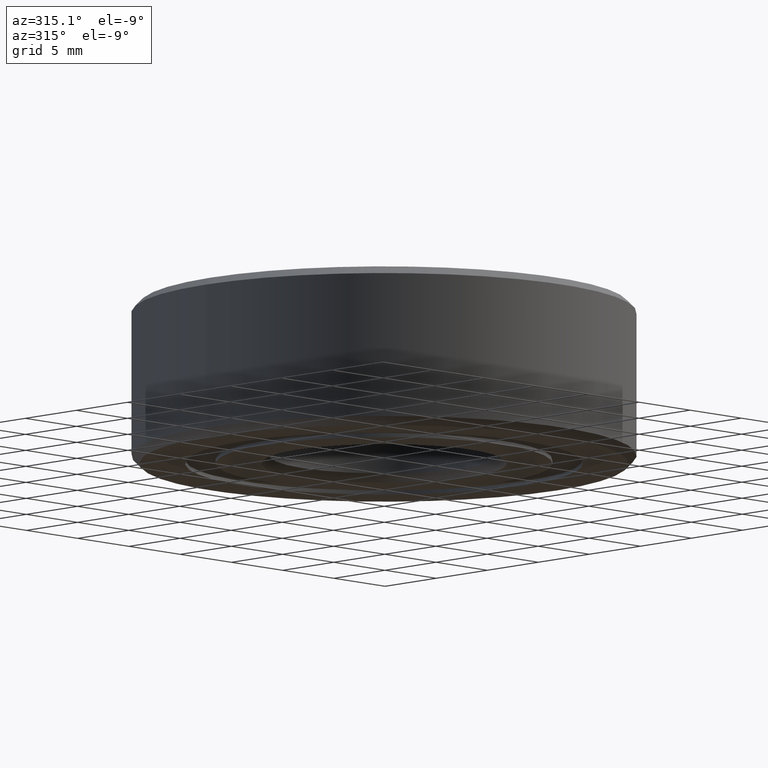
[diagram: clean part render]
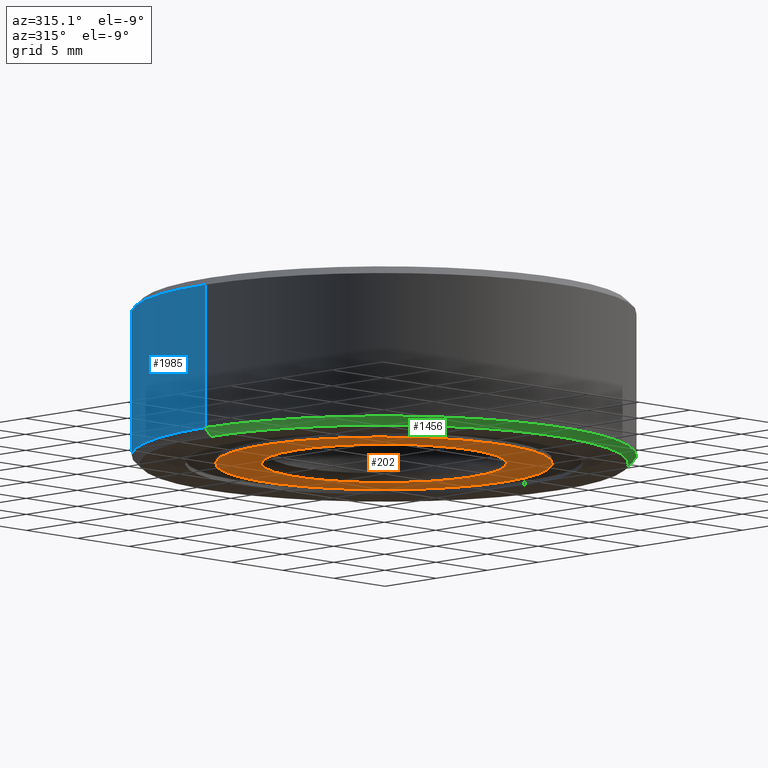
[diagram: same view with three faces highlighted in distinct colors, each labeled with its STEP entity id]
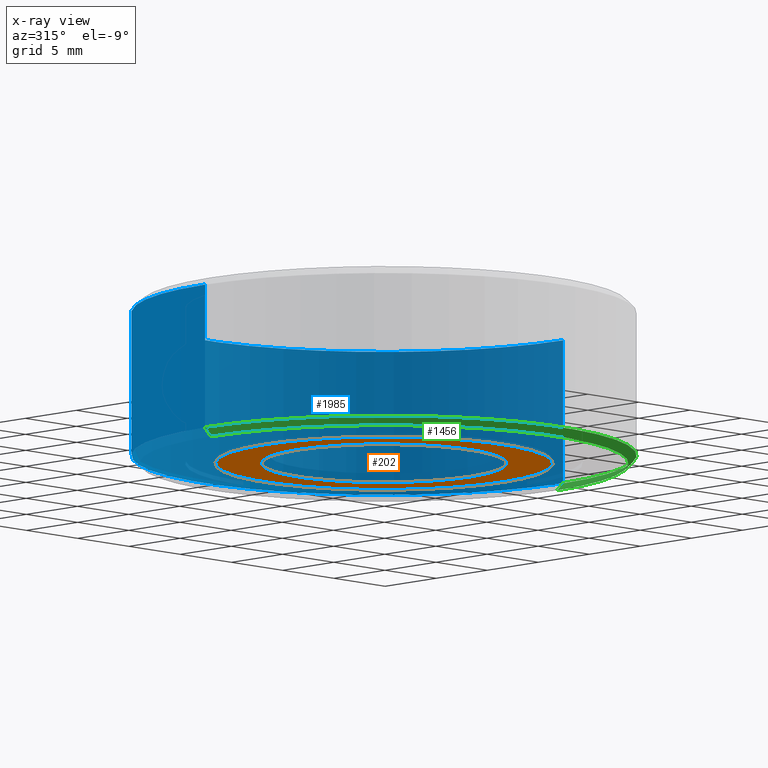
[diagram: x-ray of the same camera — body ghosted, the three highlighted faces saturated]
A machine part, auxiliary view with three faces highlighted in distinct colors.
The next image is the same camera in x-ray (body ghosted, the three faces saturated) — at least one of them is partly hidden behind the body in this view.
Their STEP definitions:

[orange] entity #202 — the highlighted planar face has unit normal (0, -0, 1).
#81 = CARTESIAN_POINT ( 'NONE',  ( 0.0000000000000000000, 0.0000000000000000000, -0.2187500000000001388 ) ) ;
#132 = ORIENTED_EDGE ( 'NONE', *, *, #2314, .F. ) ;
#137 = CARTESIAN_POINT ( 'NONE',  ( -0.4587912087912089376, 5.618571853230990234E-17, -0.2187500000000001388 ) ) ;
#138 = VERTEX_POINT ( 'NONE', #908 ) ;
#163 = DIRECTION ( 'NONE',  ( 1.000000000000000000, 0.0000000000000000000, 0.0000000000000000000 ) ) ;
#202 = ADVANCED_FACE ( 'NONE', ( #1486, #2229 ), #1377, .F. ) ;
#355 = CIRCLE ( 'NONE', #1291, 0.4587912087912089376 ) ;
#482 = CIRCLE ( 'NONE', #2151, 0.3343749999999999223 ) ;
#512 = DIRECTION ( 'NONE',  ( 1.000000000000000000, 0.0000000000000000000, 0.0000000000000000000 ) ) ;
#566 = AXIS2_PLACEMENT_3D ( 'NONE', #2295, #597, #975 ) ;
#597 = DIRECTION ( 'NONE',  ( 0.0000000000000000000, -0.0000000000000000000, 1.000000000000000000 ) ) ;
#700 = ORIENTED_EDGE ( 'NONE', *, *, #1541, .F. ) ;
#742 = DIRECTION ( 'NONE',  ( 1.000000000000000000, 0.0000000000000000000, 0.0000000000000000000 ) ) ;
#908 = CARTESIAN_POINT ( 'NONE',  ( -0.3343749999999999223, 0.0000000000000000000, -0.2187500000000001943 ) ) ;
#918 = ORIENTED_EDGE ( 'NONE', *, *, #948, .T. ) ;
#946 = CARTESIAN_POINT ( 'NONE',  ( 0.0000000000000000000, 0.0000000000000000000, -0.2187500000000001943 ) ) ;
#948 = EDGE_CURVE ( 'NONE', #138, #1066, #482, .T. ) ;
#975 = DIRECTION ( 'NONE',  ( 1.000000000000000000, 0.0000000000000000000, 0.0000000000000000000 ) ) ;
#1011 = DIRECTION ( 'NONE',  ( -0.0000000000000000000, -0.0000000000000000000, 1.000000000000000000 ) ) ;
#1066 = VERTEX_POINT ( 'NONE', #1373 ) ;
#1176 = AXIS2_PLACEMENT_3D ( 'NONE', #1598, #1812, #512 ) ;
#1232 = AXIS2_PLACEMENT_3D ( 'NONE', #81, #1011, #1584 ) ;
#1291 = AXIS2_PLACEMENT_3D ( 'NONE', #2047, #2407, #742 ) ;
#1373 = CARTESIAN_POINT ( 'NONE',  ( 0.3343749999999999223, 4.094912734648961077E-17, -0.2187500000000001943 ) ) ;
#1377 = PLANE ( 'NONE',  #566 ) ;
#1486 = FACE_OUTER_BOUND ( 'NONE', #1831, .T. ) ;
#1541 = EDGE_CURVE ( 'NONE', #1706, #2035, #1678, .T. ) ;
#1572 = CARTESIAN_POINT ( 'NONE',  ( 0.4587912087912089376, 0.0000000000000000000, -0.2187500000000001388 ) ) ;
#1584 = DIRECTION ( 'NONE',  ( 1.000000000000000000, 0.0000000000000000000, 0.0000000000000000000 ) ) ;
#1598 = CARTESIAN_POINT ( 'NONE',  ( 0.0000000000000000000, 0.0000000000000000000, -0.2187500000000001943 ) ) ;
#1617 = DIRECTION ( 'NONE',  ( -0.0000000000000000000, -0.0000000000000000000, 1.000000000000000000 ) ) ;
#1678 = CIRCLE ( 'NONE', #1232, 0.4587912087912089376 ) ;
#1706 = VERTEX_POINT ( 'NONE', #137 ) ;
#1802 = CIRCLE ( 'NONE', #1176, 0.3343749999999999223 ) ;
#1812 = DIRECTION ( 'NONE',  ( -0.0000000000000000000, -0.0000000000000000000, 1.000000000000000000 ) ) ;
#1831 = EDGE_LOOP ( 'NONE', ( #132, #700 ) ) ;
#2035 = VERTEX_POINT ( 'NONE', #1572 ) ;
#2039 = EDGE_CURVE ( 'NONE', #1066, #138, #1802, .T. ) ;
#2047 = CARTESIAN_POINT ( 'NONE',  ( 0.0000000000000000000, 0.0000000000000000000, -0.2187500000000001388 ) ) ;
#2081 = ORIENTED_EDGE ( 'NONE', *, *, #2039, .T. ) ;
#2151 = AXIS2_PLACEMENT_3D ( 'NONE', #946, #1617, #163 ) ;
#2229 = FACE_BOUND ( 'NONE', #2332, .T. ) ;
#2295 = CARTESIAN_POINT ( 'NONE',  ( 0.0000000000000000000, 0.3343749999999999223, -0.2187500000000001665 ) ) ;
#2314 = EDGE_CURVE ( 'NONE', #2035, #1706, #355, .T. ) ;
#2332 = EDGE_LOOP ( 'NONE', ( #918, #2081 ) ) ;
#2407 = DIRECTION ( 'NONE',  ( -0.0000000000000000000, -0.0000000000000000000, 1.000000000000000000 ) ) ;

[blue] entity #1985 — the highlighted cylindrical surface (partial cylindrical patch) has radius 17.4625 mm, axis along (-0, -0, 1).
#55 = DIRECTION ( 'NONE',  ( 1.000000000000000000, 0.0000000000000000000, 0.0000000000000000000 ) ) ;
#82 = FACE_OUTER_BOUND ( 'NONE', #1790, .T. ) ;
#88 = AXIS2_PLACEMENT_3D ( 'NONE', #243, #1723, #55 ) ;
#122 = CARTESIAN_POINT ( 'NONE',  ( 0.0000000000000000000, 0.0000000000000000000, 0.1968750000000000777 ) ) ;
#184 = DIRECTION ( 'NONE',  ( -0.0000000000000000000, -0.0000000000000000000, 1.000000000000000000 ) ) ;
#243 = CARTESIAN_POINT ( 'NONE',  ( 0.0000000000000000000, 0.0000000000000000000, 0.2187500000000000000 ) ) ;
#337 = VERTEX_POINT ( 'NONE', #1918 ) ;
#373 = AXIS2_PLACEMENT_3D ( 'NONE', #2335, #1576, #2148 ) ;
#390 = EDGE_CURVE ( 'NONE', #1702, #337, #1418, .T. ) ;
#536 = ORIENTED_EDGE ( 'NONE', *, *, #821, .F. ) ;
#607 = VERTEX_POINT ( 'NONE', #936 ) ;
#608 = CARTESIAN_POINT ( 'NONE',  ( 0.6875000000000000000, 8.419446744138052529E-17, 0.1968750000000000777 ) ) ;
#686 = DIRECTION ( 'NONE',  ( 1.000000000000000000, 0.0000000000000000000, 0.0000000000000000000 ) ) ;
#821 = EDGE_CURVE ( 'NONE', #1702, #1079, #1624, .T. ) ;
#826 = LINE ( 'NONE', #1560, #2067 ) ;
#841 = CARTESIAN_POINT ( 'NONE',  ( 0.6875000000000000000, 0.0000000000000000000, -0.1968750000000001610 ) ) ;
#865 = DIRECTION ( 'NONE',  ( -0.0000000000000000000, -0.0000000000000000000, 1.000000000000000000 ) ) ;
#880 = ORIENTED_EDGE ( 'NONE', *, *, #1194, .F. ) ;
#936 = CARTESIAN_POINT ( 'NONE',  ( -0.6875000000000000000, 0.0000000000000000000, 0.1968750000000000777 ) ) ;
#1004 = CIRCLE ( 'NONE', #1348, 0.6875000000000000000 ) ;
#1079 = VERTEX_POINT ( 'NONE', #608 ) ;
#1170 = CYLINDRICAL_SURFACE ( 'NONE', #88, 0.6875000000000000000 ) ;
#1194 = EDGE_CURVE ( 'NONE', #1079, #607, #1004, .T. ) ;
#1335 = ORIENTED_EDGE ( 'NONE', *, *, #390, .T. ) ;
#1348 = AXIS2_PLACEMENT_3D ( 'NONE', #122, #865, #686 ) ;
#1410 = ORIENTED_EDGE ( 'NONE', *, *, #1555, .T. ) ;
#1418 = CIRCLE ( 'NONE', #373, 0.6875000000000000000 ) ;
#1440 = CARTESIAN_POINT ( 'NONE',  ( 0.6875000000000000000, 0.0000000000000000000, 0.2187500000000000000 ) ) ;
#1555 = EDGE_CURVE ( 'NONE', #337, #607, #826, .T. ) ;
#1560 = CARTESIAN_POINT ( 'NONE',  ( -0.6875000000000000000, 8.419446744138052529E-17, 0.2187500000000000000 ) ) ;
#1576 = DIRECTION ( 'NONE',  ( -0.0000000000000000000, -0.0000000000000000000, 1.000000000000000000 ) ) ;
#1624 = LINE ( 'NONE', #1440, #2063 ) ;
#1702 = VERTEX_POINT ( 'NONE', #841 ) ;
#1723 = DIRECTION ( 'NONE',  ( -0.0000000000000000000, -0.0000000000000000000, 1.000000000000000000 ) ) ;
#1790 = EDGE_LOOP ( 'NONE', ( #1335, #1410, #880, #536 ) ) ;
#1918 = CARTESIAN_POINT ( 'NONE',  ( -0.6875000000000000000, 8.419446744138052529E-17, -0.1968750000000001610 ) ) ;
#1985 = ADVANCED_FACE ( 'NONE', ( #82 ), #1170, .T. ) ;
#2063 = VECTOR ( 'NONE', #184, 39.37007874015748143 ) ;
#2067 = VECTOR ( 'NONE', #2303, 39.37007874015748143 ) ;
#2148 = DIRECTION ( 'NONE',  ( 1.000000000000000000, 0.0000000000000000000, 0.0000000000000000000 ) ) ;
#2303 = DIRECTION ( 'NONE',  ( -0.0000000000000000000, -0.0000000000000000000, 1.000000000000000000 ) ) ;
#2335 = CARTESIAN_POINT ( 'NONE',  ( 0.0000000000000000000, 0.0000000000000000000, -0.1968750000000001610 ) ) ;

[green] entity #1456 — the highlighted conical surface has half-angle 45 deg.
#52 = ORIENTED_EDGE ( 'NONE', *, *, #2392, .F. ) ;
#92 = VERTEX_POINT ( 'NONE', #1724 ) ;
#257 = DIRECTION ( 'NONE',  ( -0.0000000000000000000, -0.0000000000000000000, 1.000000000000000000 ) ) ;
#337 = VERTEX_POINT ( 'NONE', #1918 ) ;
#396 = CARTESIAN_POINT ( 'NONE',  ( 0.6656250000000001332, 0.0000000000000000000, -0.2187500000000001388 ) ) ;
#418 = AXIS2_PLACEMENT_3D ( 'NONE', #1354, #257, #2096 ) ;
#431 = EDGE_CURVE ( 'NONE', #92, #337, #652, .T. ) ;
#461 = AXIS2_PLACEMENT_3D ( 'NONE', #2266, #1345, #2243 ) ;
#466 = DIRECTION ( 'NONE',  ( -0.7071067811865463515, 8.659560562354918067E-17, 0.7071067811865486830 ) ) ;
#506 = EDGE_LOOP ( 'NONE', ( #1654, #1007, #2192, #52 ) ) ;
#576 = DIRECTION ( 'NONE',  ( -0.0000000000000000000, -0.0000000000000000000, 1.000000000000000000 ) ) ;
#652 = LINE ( 'NONE', #1389, #1611 ) ;
#709 = CARTESIAN_POINT ( 'NONE',  ( 0.6656250000000001332, 0.0000000000000000000, -0.2187500000000001388 ) ) ;
#804 = CIRCLE ( 'NONE', #418, 0.6875000000000000000 ) ;
#841 = CARTESIAN_POINT ( 'NONE',  ( 0.6875000000000000000, 0.0000000000000000000, -0.1968750000000001610 ) ) ;
#850 = CONICAL_SURFACE ( 'NONE', #2208, 0.6656250000000001332, 0.7853981633974466137 ) ;
#1007 = ORIENTED_EDGE ( 'NONE', *, *, #1103, .T. ) ;
#1103 = EDGE_CURVE ( 'NONE', #92, #2248, #2359, .T. ) ;
#1110 = EDGE_CURVE ( 'NONE', #2248, #1702, #2090, .T. ) ;
#1169 = CARTESIAN_POINT ( 'NONE',  ( 0.0000000000000000000, 0.0000000000000000000, -0.2187500000000001388 ) ) ;
#1345 = DIRECTION ( 'NONE',  ( -0.0000000000000000000, -0.0000000000000000000, 1.000000000000000000 ) ) ;
#1354 = CARTESIAN_POINT ( 'NONE',  ( 0.0000000000000000000, 0.0000000000000000000, -0.1968750000000001610 ) ) ;
#1389 = CARTESIAN_POINT ( 'NONE',  ( -0.6656250000000001332, 8.151555256824570378E-17, -0.2187500000000001388 ) ) ;
#1456 = ADVANCED_FACE ( 'NONE', ( #1499 ), #850, .T. ) ;
#1499 = FACE_OUTER_BOUND ( 'NONE', #506, .T. ) ;
#1611 = VECTOR ( 'NONE', #466, 39.37007874015748143 ) ;
#1654 = ORIENTED_EDGE ( 'NONE', *, *, #431, .F. ) ;
#1702 = VERTEX_POINT ( 'NONE', #841 ) ;
#1724 = CARTESIAN_POINT ( 'NONE',  ( -0.6656250000000001332, 8.285501000481311454E-17, -0.2187500000000001388 ) ) ;
#1881 = DIRECTION ( 'NONE',  ( 1.000000000000000000, 0.0000000000000000000, 0.0000000000000000000 ) ) ;
#1918 = CARTESIAN_POINT ( 'NONE',  ( -0.6875000000000000000, 8.419446744138052529E-17, -0.1968750000000001610 ) ) ;
#2014 = VECTOR ( 'NONE', #2281, 39.37007874015748143 ) ;
#2090 = LINE ( 'NONE', #396, #2014 ) ;
#2096 = DIRECTION ( 'NONE',  ( 1.000000000000000000, 0.0000000000000000000, 0.0000000000000000000 ) ) ;
#2192 = ORIENTED_EDGE ( 'NONE', *, *, #1110, .T. ) ;
#2208 = AXIS2_PLACEMENT_3D ( 'NONE', #1169, #576, #1881 ) ;
#2243 = DIRECTION ( 'NONE',  ( 1.000000000000000000, 0.0000000000000000000, 0.0000000000000000000 ) ) ;
#2248 = VERTEX_POINT ( 'NONE', #709 ) ;
#2266 = CARTESIAN_POINT ( 'NONE',  ( 0.0000000000000000000, 0.0000000000000000000, -0.2187500000000001388 ) ) ;
#2281 = DIRECTION ( 'NONE',  ( 0.7071067811865463515, 0.0000000000000000000, 0.7071067811865486830 ) ) ;
#2359 = CIRCLE ( 'NONE', #461, 0.6656250000000001332 ) ;
#2392 = EDGE_CURVE ( 'NONE', #337, #1702, #804, .T. ) ;